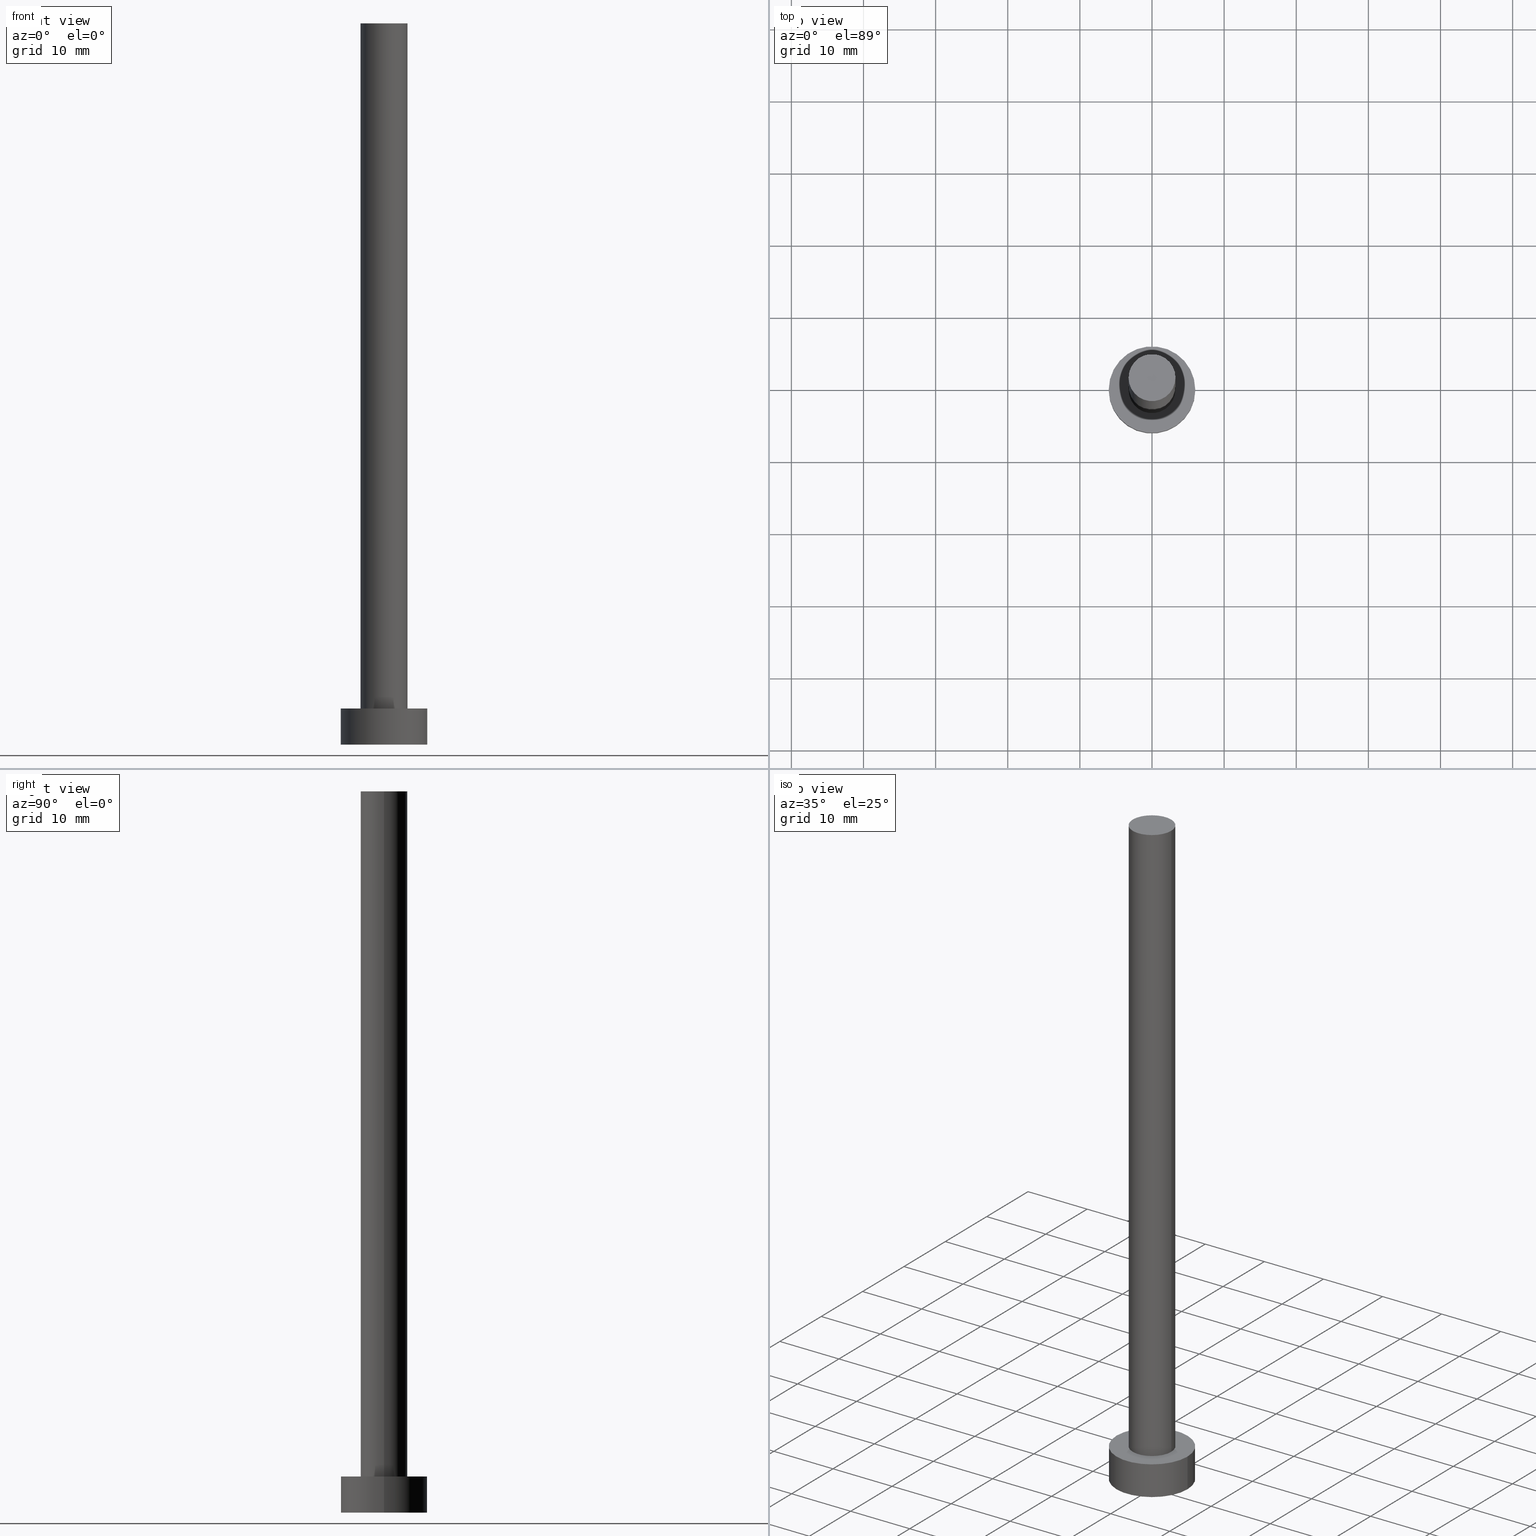
[diagram: canonical four-view strip — front | top / right | iso, engineering-drawing reading convention]
A machine part, canonical four-view strip (front | top / right | iso — engineering-drawing reading convention). The complete STEP part file that produces these views, byte-faithful:
ISO-10303-21;
HEADER;
FILE_DESCRIPTION (( 'STEP AP203' ),
    '1' );
FILE_NAME ('5fa0.STEP',
    '2023-02-12T11:31:53',
    ( '' ),
    ( '' ),
    'SwSTEP 2.0',
    'SolidWorks 2019',
    '' );
FILE_SCHEMA (( 'CONFIG_CONTROL_DESIGN' ));
ENDSEC;

DATA;
#1 = CC_DESIGN_PERSON_AND_ORGANIZATION_ASSIGNMENT ( #187, #90, ( #71 ) ) ;
#2 = DIRECTION ( 'NONE',  ( -0.000000000000000000, -0.000000000000000000, -1.000000000000000000 ) ) ;
#3 = ORIENTED_EDGE ( 'NONE', *, *, #118, .T. ) ;
#4 = CYLINDRICAL_SURFACE ( 'NONE', #16, 3.250000000000000444 ) ;
#5 = FACE_BOUND ( 'NONE', #245, .T. ) ;
#6 =( NAMED_UNIT ( * ) PLANE_ANGLE_UNIT ( ) SI_UNIT ( $, .RADIAN. ) );
#7 = AXIS2_PLACEMENT_3D ( 'NONE', #22, #81, #126 ) ;
#8 = ORIENTED_EDGE ( 'NONE', *, *, #51, .T. ) ;
#9 = APPLICATION_PROTOCOL_DEFINITION ( 'international standard', 'config_control_design', 1994, #255 ) ;
#10 = ORIENTED_EDGE ( 'NONE', *, *, #30, .F. ) ;
#11 = CIRCLE ( 'NONE', #36, 6.000000000000000888 ) ;
#12 = DIRECTION ( 'NONE',  ( 1.000000000000000000, 0.000000000000000000, 0.000000000000000000 ) ) ;
#13 = APPROVAL_STATUS ( 'not_yet_approved' ) ;
#14 = PRODUCT_DEFINITION_SHAPE ( 'NONE', 'NONE',  #205 ) ;
#15 = VERTEX_POINT ( 'NONE', #46 ) ;
#16 = AXIS2_PLACEMENT_3D ( 'NONE', #244, #61, #34 ) ;
#17 = PERSON_AND_ORGANIZATION ( #42, #214 ) ;
#18 = AXIS2_PLACEMENT_3D ( 'NONE', #246, #207, #208 ) ;
#19 = CARTESIAN_POINT ( 'NONE',  ( 6.000000000000000888, 7.347880794884120722E-16, 5.000000000000000000 ) ) ;
#20 = DIRECTION ( 'NONE',  ( 1.000000000000000000, 0.000000000000000000, 0.000000000000000000 ) ) ;
#21 = ADVANCED_FACE ( 'NONE', ( #140 ), #137, .T. ) ;
#22 = CARTESIAN_POINT ( 'NONE',  ( 0.000000000000000000, 0.000000000000000000, 5.000000000000000000 ) ) ;
#23 = ORIENTED_EDGE ( 'NONE', *, *, #212, .T. ) ;
#24 =( LENGTH_UNIT ( ) NAMED_UNIT ( * ) SI_UNIT ( .MILLI., .METRE. ) );
#25 = VERTEX_POINT ( 'NONE', #252 ) ;
#26 = CARTESIAN_POINT ( 'NONE',  ( 3.250000000000000444, 3.980102097228898231E-16, 5.000000000000000000 ) ) ;
#27 = ORIENTED_EDGE ( 'NONE', *, *, #178, .F. ) ;
#28 = CC_DESIGN_DATE_AND_TIME_ASSIGNMENT ( #236, #49, ( #205 ) ) ;
#29 = APPROVAL_STATUS ( 'not_yet_approved' ) ;
#30 = EDGE_CURVE ( 'NONE', #154, #211, #50, .T. ) ;
#31 = COORDINATED_UNIVERSAL_TIME_OFFSET ( 1, 0, .AHEAD. ) ;
#32 = PERSON_AND_ORGANIZATION_ROLE ( 'design_supplier' ) ;
#33 = CC_DESIGN_APPROVAL ( #247, ( #110 ) ) ;
#34 = DIRECTION ( 'NONE',  ( -1.000000000000000000, 0.000000000000000000, 0.000000000000000000 ) ) ;
#35 = FACE_OUTER_BOUND ( 'NONE', #251, .T. ) ;
#36 = AXIS2_PLACEMENT_3D ( 'NONE', #240, #195, #197 ) ;
#37 = DIRECTION ( 'NONE',  ( 0.000000000000000000, 0.000000000000000000, 1.000000000000000000 ) ) ;
#38 = DIRECTION ( 'NONE',  ( -0.000000000000000000, -0.000000000000000000, -1.000000000000000000 ) ) ;
#39 = CARTESIAN_POINT ( 'NONE',  ( -6.000000000000000888, 0.000000000000000000, 5.000000000000000000 ) ) ;
#40 = APPLICATION_PROTOCOL_DEFINITION ( 'international standard', 'config_control_design', 1994, #146 ) ;
#41 = DIRECTION ( 'NONE',  ( 1.000000000000000000, 0.000000000000000000, -0.000000000000000000 ) ) ;
#42 = PERSON ( 'NEUR�EN�', 'NEUR�EN�', 'NEUR�EN�', ('NEUR�EN�'), ('NEUR�EN�'), ('NEUR�EN�') ) ;
#43 = AXIS2_PLACEMENT_3D ( 'NONE', #239, #2, #206 ) ;
#44 = EDGE_LOOP ( 'NONE', ( #209, #225, #168, #170 ) ) ;
#45 = ORIENTED_EDGE ( 'NONE', *, *, #143, .T. ) ;
#46 = CARTESIAN_POINT ( 'NONE',  ( -3.250000000000000444, 0.000000000000000000, 100.0000000000000000 ) ) ;
#47 = CARTESIAN_POINT ( 'NONE',  ( -3.250000000000000444, 0.000000000000000000, 5.000000000000000000 ) ) ;
#48 = LOCAL_TIME ( 12, 31, 53.00000000000000000, #190 ) ;
#49 = DATE_TIME_ROLE ( 'creation_date' ) ;
#50 = CIRCLE ( 'NONE', #196, 6.000000000000000888 ) ;
#51 = EDGE_CURVE ( 'NONE', #248, #127, #100, .T. ) ;
#52 = CIRCLE ( 'NONE', #229, 3.250000000000000444 ) ;
#53 = LOCAL_TIME ( 12, 31, 53.00000000000000000, #101 ) ;
#54 = CARTESIAN_POINT ( 'NONE',  ( -3.250000000000000444, 0.000000000000000000, 100.0000000000000000 ) ) ;
#55 = DIRECTION ( 'NONE',  ( 1.000000000000000000, 0.000000000000000000, 0.000000000000000000 ) ) ;
#56 = VECTOR ( 'NONE', #130, 1000.000000000000000 ) ;
#57 = SECURITY_CLASSIFICATION_LEVEL ( 'unclassified' ) ;
#58 = DIRECTION ( 'NONE',  ( -1.000000000000000000, 0.000000000000000000, 0.000000000000000000 ) ) ;
#59 = PLANE ( 'NONE',  #158 ) ;
#60 = APPROVAL_ROLE ( '' ) ;
#61 = DIRECTION ( 'NONE',  ( -0.000000000000000000, -0.000000000000000000, -1.000000000000000000 ) ) ;
#62 = DIRECTION ( 'NONE',  ( 1.000000000000000000, 0.000000000000000000, 0.000000000000000000 ) ) ;
#63 = ORIENTED_EDGE ( 'NONE', *, *, #220, .F. ) ;
#64 = ADVANCED_FACE ( 'NONE', ( #161 ), #59, .F. ) ;
#65 = AXIS2_PLACEMENT_3D ( 'NONE', #201, #102, #179 ) ;
#66 =( GEOMETRIC_REPRESENTATION_CONTEXT ( 3 ) GLOBAL_UNCERTAINTY_ASSIGNED_CONTEXT ( ( #89 ) ) GLOBAL_UNIT_ASSIGNED_CONTEXT ( ( #24, #6, #111 ) ) REPRESENTATION_CONTEXT ( 'NONE', 'WORKASPACE' ) );
#67 = FACE_OUTER_BOUND ( 'NONE', #145, .T. ) ;
#68 = CARTESIAN_POINT ( 'NONE',  ( 6.000000000000000888, 7.347880794884120722E-16, 5.000000000000000000 ) ) ;
#69 = DATE_AND_TIME ( #97, #198 ) ;
#70 = ORIENTED_EDGE ( 'NONE', *, *, #128, .F. ) ;
#71 = PRODUCT ( '5fa0', '5fa0', '', ( #228 ) ) ;
#72 = APPROVAL_ROLE ( '' ) ;
#73 = EDGE_CURVE ( 'NONE', #15, #25, #242, .T. ) ;
#74 = AXIS2_PLACEMENT_3D ( 'NONE', #176, #215, #174 ) ;
#75 = APPROVAL_DATE_TIME ( #117, #250 ) ;
#76 = DATE_AND_TIME ( #202, #48 ) ;
#77 = CC_DESIGN_PERSON_AND_ORGANIZATION_ASSIGNMENT ( #17, #32, ( #110 ) ) ;
#78 = COORDINATED_UNIVERSAL_TIME_OFFSET ( 1, 0, .AHEAD. ) ;
#79 = LOCAL_TIME ( 12, 31, 53.00000000000000000, #31 ) ;
#80 = CARTESIAN_POINT ( 'NONE',  ( 0.000000000000000000, 0.000000000000000000, 0.000000000000000000 ) ) ;
#81 = DIRECTION ( 'NONE',  ( 0.000000000000000000, 0.000000000000000000, 1.000000000000000000 ) ) ;
#82 = CC_DESIGN_PERSON_AND_ORGANIZATION_ASSIGNMENT ( #139, #213, ( #205 ) ) ;
#83 = LINE ( 'NONE', #105, #180 ) ;
#84 = CC_DESIGN_APPROVAL ( #159, ( #155 ) ) ;
#85 = DIRECTION ( 'NONE',  ( 0.000000000000000000, 0.000000000000000000, 1.000000000000000000 ) ) ;
#86 = ADVANCED_FACE ( 'NONE', ( #35 ), #124, .T. ) ;
#87 = EDGE_LOOP ( 'NONE', ( #191, #45, #23, #112 ) ) ;
#88 = LINE ( 'NONE', #108, #189 ) ;
#89 = UNCERTAINTY_MEASURE_WITH_UNIT (LENGTH_MEASURE( 1.000000000000000082E-05 ), #24, 'distance_accuracy_value', 'NONE');
#90 = PERSON_AND_ORGANIZATION_ROLE ( 'design_owner' ) ;
#91 = AXIS2_PLACEMENT_3D ( 'NONE', #184, #113, #12 ) ;
#92 = PERSON_AND_ORGANIZATION ( #42, #214 ) ;
#93 = VERTEX_POINT ( 'NONE', #26 ) ;
#94 = LOCAL_TIME ( 12, 31, 53.00000000000000000, #78 ) ;
#95 = ORIENTED_EDGE ( 'NONE', *, *, #73, .T. ) ;
#96 = PERSON_AND_ORGANIZATION ( #42, #214 ) ;
#97 = CALENDAR_DATE ( 2023, 12, 2 ) ;
#98 = EDGE_CURVE ( 'NONE', #25, #15, #171, .T. ) ;
#99 = COORDINATED_UNIVERSAL_TIME_OFFSET ( 1, 0, .AHEAD. ) ;
#100 = CIRCLE ( 'NONE', #138, 6.000000000000000888 ) ;
#101 = COORDINATED_UNIVERSAL_TIME_OFFSET ( 1, 0, .AHEAD. ) ;
#102 = DIRECTION ( 'NONE',  ( 0.000000000000000000, 0.000000000000000000, 1.000000000000000000 ) ) ;
#103 = AXIS2_PLACEMENT_3D ( 'NONE', #221, #226, #133 ) ;
#104 = ADVANCED_FACE ( 'NONE', ( #5, #67 ), #186, .T. ) ;
#105 = CARTESIAN_POINT ( 'NONE',  ( 3.250000000000000444, 3.980102097228898231E-16, 100.0000000000000000 ) ) ;
#106 = CARTESIAN_POINT ( 'NONE',  ( 0.000000000000000000, 0.000000000000000000, 100.0000000000000000 ) ) ;
#107 = CIRCLE ( 'NONE', #7, 3.250000000000000444 ) ;
#108 = CARTESIAN_POINT ( 'NONE',  ( -6.000000000000000888, 0.000000000000000000, 5.000000000000000000 ) ) ;
#109 = EDGE_LOOP ( 'NONE', ( #10, #224, #8, #182 ) ) ;
#110 = PRODUCT_DEFINITION_FORMATION_WITH_SPECIFIED_SOURCE ( 'LIBOVOLN�', '', #71, .NOT_KNOWN. ) ;
#111 =( NAMED_UNIT ( * ) SI_UNIT ( $, .STERADIAN. ) SOLID_ANGLE_UNIT ( ) );
#112 = ORIENTED_EDGE ( 'NONE', *, *, #216, .F. ) ;
#113 = DIRECTION ( 'NONE',  ( 0.000000000000000000, 0.000000000000000000, 1.000000000000000000 ) ) ;
#114 = ORIENTED_EDGE ( 'NONE', *, *, #98, .T. ) ;
#115 = DIRECTION ( 'NONE',  ( 0.000000000000000000, 0.000000000000000000, 1.000000000000000000 ) ) ;
#116 = APPROVAL_PERSON_ORGANIZATION ( #253, #159, #254 ) ;
#117 = DATE_AND_TIME ( #235, #94 ) ;
#118 = EDGE_CURVE ( 'NONE', #127, #248, #125, .T. ) ;
#119 = PERSON_AND_ORGANIZATION ( #42, #214 ) ;
#120 = AXIS2_PLACEMENT_3D ( 'NONE', #106, #200, #58 ) ;
#121 = CARTESIAN_POINT ( 'NONE',  ( 0.000000000000000000, 0.000000000000000000, 5.000000000000000000 ) ) ;
#122 = CALENDAR_DATE ( 2023, 12, 2 ) ;
#123 = CYLINDRICAL_SURFACE ( 'NONE', #43, 6.000000000000000888 ) ;
#124 = CYLINDRICAL_SURFACE ( 'NONE', #18, 6.000000000000000888 ) ;
#125 = CIRCLE ( 'NONE', #233, 6.000000000000000888 ) ;
#126 = DIRECTION ( 'NONE',  ( 1.000000000000000000, 0.000000000000000000, 0.000000000000000000 ) ) ;
#127 = VERTEX_POINT ( 'NONE', #148 ) ;
#128 = EDGE_CURVE ( 'NONE', #211, #154, #11, .T. ) ;
#129 = VECTOR ( 'NONE', #141, 1000.000000000000000 ) ;
#130 = DIRECTION ( 'NONE',  ( -0.000000000000000000, -0.000000000000000000, -1.000000000000000000 ) ) ;
#131 = CARTESIAN_POINT ( 'NONE',  ( 0.000000000000000000, 0.000000000000000000, 0.000000000000000000 ) ) ;
#132 = EDGE_LOOP ( 'NONE', ( #151, #173 ) ) ;
#133 = DIRECTION ( 'NONE',  ( 1.000000000000000000, 0.000000000000000000, 0.000000000000000000 ) ) ;
#134 = PERSON_AND_ORGANIZATION_ROLE ( 'classification_officer' ) ;
#135 = ORIENTED_EDGE ( 'NONE', *, *, #136, .T. ) ;
#136 = EDGE_CURVE ( 'NONE', #211, #127, #88, .T. ) ;
#137 = PLANE ( 'NONE',  #74 ) ;
#138 = AXIS2_PLACEMENT_3D ( 'NONE', #80, #37, #164 ) ;
#139 = PERSON_AND_ORGANIZATION ( #42, #214 ) ;
#140 = FACE_OUTER_BOUND ( 'NONE', #188, .T. ) ;
#141 = DIRECTION ( 'NONE',  ( -0.000000000000000000, -0.000000000000000000, -1.000000000000000000 ) ) ;
#142 = APPROVAL_PERSON_ORGANIZATION ( #157, #247, #60 ) ;
#143 = EDGE_CURVE ( 'NONE', #25, #93, #83, .T. ) ;
#144 = DIRECTION ( 'NONE',  ( 0.000000000000000000, 0.000000000000000000, 1.000000000000000000 ) ) ;
#145 = EDGE_LOOP ( 'NONE', ( #249, #150 ) ) ;
#146 = APPLICATION_CONTEXT ( 'configuration controlled 3d designs of mechanical parts and assemblies' ) ;
#147 = FACE_OUTER_BOUND ( 'NONE', #44, .T. ) ;
#148 = CARTESIAN_POINT ( 'NONE',  ( -6.000000000000000888, 0.000000000000000000, 0.000000000000000000 ) ) ;
#149 = CC_DESIGN_PERSON_AND_ORGANIZATION_ASSIGNMENT ( #92, #134, ( #155 ) ) ;
#150 = ORIENTED_EDGE ( 'NONE', *, *, #30, .T. ) ;
#151 = ORIENTED_EDGE ( 'NONE', *, *, #118, .F. ) ;
#152 = DIRECTION ( 'NONE',  ( 0.000000000000000000, 0.000000000000000000, 1.000000000000000000 ) ) ;
#153 = CARTESIAN_POINT ( 'NONE',  ( 6.000000000000000888, 7.347880794884120722E-16, 0.000000000000000000 ) ) ;
#154 = VERTEX_POINT ( 'NONE', #19 ) ;
#155 = SECURITY_CLASSIFICATION ( '', '', #57 ) ;
#156 = ADVANCED_BREP_SHAPE_REPRESENTATION ( '5fa0', ( #232, #103 ), #66 ) ;
#157 = PERSON_AND_ORGANIZATION ( #42, #214 ) ;
#158 = AXIS2_PLACEMENT_3D ( 'NONE', #160, #243, #166 ) ;
#159 = APPROVAL ( #13, 'NEUR�EN�' ) ;
#160 = CARTESIAN_POINT ( 'NONE',  ( 0.000000000000000000, 0.000000000000000000, 0.000000000000000000 ) ) ;
#161 = FACE_OUTER_BOUND ( 'NONE', #132, .T. ) ;
#162 = ADVANCED_FACE ( 'NONE', ( #147 ), #241, .T. ) ;
#163 = DATE_AND_TIME ( #122, #79 ) ;
#164 = DIRECTION ( 'NONE',  ( 1.000000000000000000, 0.000000000000000000, 0.000000000000000000 ) ) ;
#165 = DIRECTION ( 'NONE',  ( -0.000000000000000000, -0.000000000000000000, -1.000000000000000000 ) ) ;
#166 = DIRECTION ( 'NONE',  ( 1.000000000000000000, 0.000000000000000000, -0.000000000000000000 ) ) ;
#167 = CC_DESIGN_APPROVAL ( #250, ( #205 ) ) ;
#168 = ORIENTED_EDGE ( 'NONE', *, *, #216, .T. ) ;
#169 = APPROVAL_STATUS ( 'not_yet_approved' ) ;
#170 = ORIENTED_EDGE ( 'NONE', *, *, #178, .T. ) ;
#171 = CIRCLE ( 'NONE', #91, 3.250000000000000444 ) ;
#172 = SHAPE_DEFINITION_REPRESENTATION ( #14, #156 ) ;
#173 = ORIENTED_EDGE ( 'NONE', *, *, #51, .F. ) ;
#174 = DIRECTION ( 'NONE',  ( 1.000000000000000000, 0.000000000000000000, -0.000000000000000000 ) ) ;
#175 = DATE_TIME_ROLE ( 'classification_date' ) ;
#176 = CARTESIAN_POINT ( 'NONE',  ( 0.000000000000000000, 0.000000000000000000, 100.0000000000000000 ) ) ;
#177 = CALENDAR_DATE ( 2023, 12, 2 ) ;
#178 = EDGE_CURVE ( 'NONE', #223, #93, #52, .T. ) ;
#179 = DIRECTION ( 'NONE',  ( 1.000000000000000000, 0.000000000000000000, 0.000000000000000000 ) ) ;
#180 = VECTOR ( 'NONE', #165, 1000.000000000000000 ) ;
#181 = DESIGN_CONTEXT ( 'detailed design', #255, 'design' ) ;
#182 = ORIENTED_EDGE ( 'NONE', *, *, #136, .F. ) ;
#183 = FACE_OUTER_BOUND ( 'NONE', #87, .T. ) ;
#184 = CARTESIAN_POINT ( 'NONE',  ( 0.000000000000000000, 0.000000000000000000, 100.0000000000000000 ) ) ;
#185 = LINE ( 'NONE', #68, #56 ) ;
#186 = PLANE ( 'NONE',  #234 ) ;
#187 = PERSON_AND_ORGANIZATION ( #42, #214 ) ;
#188 = EDGE_LOOP ( 'NONE', ( #95, #114 ) ) ;
#189 = VECTOR ( 'NONE', #38, 1000.000000000000000 ) ;
#190 = COORDINATED_UNIVERSAL_TIME_OFFSET ( 1, 0, .AHEAD. ) ;
#191 = ORIENTED_EDGE ( 'NONE', *, *, #98, .F. ) ;
#192 = ADVANCED_FACE ( 'NONE', ( #183 ), #4, .T. ) ;
#193 = PERSON_AND_ORGANIZATION_ROLE ( 'creator' ) ;
#194 = PRODUCT_RELATED_PRODUCT_CATEGORY ( 'detail', '', ( #71 ) ) ;
#195 = DIRECTION ( 'NONE',  ( 0.000000000000000000, 0.000000000000000000, 1.000000000000000000 ) ) ;
#196 = AXIS2_PLACEMENT_3D ( 'NONE', #121, #85, #55 ) ;
#197 = DIRECTION ( 'NONE',  ( 1.000000000000000000, 0.000000000000000000, 0.000000000000000000 ) ) ;
#198 = LOCAL_TIME ( 12, 31, 53.00000000000000000, #99 ) ;
#199 = CC_DESIGN_DATE_AND_TIME_ASSIGNMENT ( #69, #175, ( #155 ) ) ;
#200 = DIRECTION ( 'NONE',  ( -0.000000000000000000, -0.000000000000000000, -1.000000000000000000 ) ) ;
#201 = CARTESIAN_POINT ( 'NONE',  ( 0.000000000000000000, 0.000000000000000000, 100.0000000000000000 ) ) ;
#202 = CALENDAR_DATE ( 2023, 12, 2 ) ;
#203 = CARTESIAN_POINT ( 'NONE',  ( 0.000000000000000000, 0.000000000000000000, 5.000000000000000000 ) ) ;
#204 = CARTESIAN_POINT ( 'NONE',  ( 0.000000000000000000, 0.000000000000000000, 5.000000000000000000 ) ) ;
#205 = PRODUCT_DEFINITION ( 'NEZN�M�', '', #110, #181 ) ;
#206 = DIRECTION ( 'NONE',  ( -1.000000000000000000, 0.000000000000000000, 0.000000000000000000 ) ) ;
#207 = DIRECTION ( 'NONE',  ( -0.000000000000000000, -0.000000000000000000, -1.000000000000000000 ) ) ;
#208 = DIRECTION ( 'NONE',  ( -1.000000000000000000, 0.000000000000000000, 0.000000000000000000 ) ) ;
#209 = ORIENTED_EDGE ( 'NONE', *, *, #143, .F. ) ;
#210 = CC_DESIGN_PERSON_AND_ORGANIZATION_ASSIGNMENT ( #119, #193, ( #110 ) ) ;
#211 = VERTEX_POINT ( 'NONE', #39 ) ;
#212 = EDGE_CURVE ( 'NONE', #93, #223, #107, .T. ) ;
#213 = PERSON_AND_ORGANIZATION_ROLE ( 'creator' ) ;
#214 = ORGANIZATION ( 'NEUR�EN�', 'NEUR�EN�', '' ) ;
#215 = DIRECTION ( 'NONE',  ( 0.000000000000000000, 0.000000000000000000, 1.000000000000000000 ) ) ;
#216 = EDGE_CURVE ( 'NONE', #15, #223, #237, .T. ) ;
#217 = APPROVAL_PERSON_ORGANIZATION ( #96, #250, #72 ) ;
#218 = FACE_OUTER_BOUND ( 'NONE', #109, .T. ) ;
#219 = ADVANCED_FACE ( 'NONE', ( #218 ), #123, .T. ) ;
#220 = EDGE_CURVE ( 'NONE', #154, #248, #185, .T. ) ;
#221 = CARTESIAN_POINT ( 'NONE',  ( 0.000000000000000000, 0.000000000000000000, 0.000000000000000000 ) ) ;
#222 = CLOSED_SHELL ( 'NONE', ( #192, #219, #86, #104, #64, #162, #21 ) ) ;
#223 = VERTEX_POINT ( 'NONE', #47 ) ;
#224 = ORIENTED_EDGE ( 'NONE', *, *, #220, .T. ) ;
#225 = ORIENTED_EDGE ( 'NONE', *, *, #73, .F. ) ;
#226 = DIRECTION ( 'NONE',  ( 0.000000000000000000, 0.000000000000000000, 1.000000000000000000 ) ) ;
#227 = ORIENTED_EDGE ( 'NONE', *, *, #212, .F. ) ;
#228 = MECHANICAL_CONTEXT ( 'NONE', #146, 'mechanical' ) ;
#229 = AXIS2_PLACEMENT_3D ( 'NONE', #203, #144, #20 ) ;
#230 = CC_DESIGN_SECURITY_CLASSIFICATION ( #155, ( #110 ) ) ;
#231 = APPROVAL_DATE_TIME ( #76, #159 ) ;
#232 = MANIFOLD_SOLID_BREP ( 'P�idat vysunut�m3', #222 ) ;
#233 = AXIS2_PLACEMENT_3D ( 'NONE', #131, #115, #62 ) ;
#234 = AXIS2_PLACEMENT_3D ( 'NONE', #204, #152, #41 ) ;
#235 = CALENDAR_DATE ( 2023, 12, 2 ) ;
#236 = DATE_AND_TIME ( #177, #53 ) ;
#237 = LINE ( 'NONE', #54, #129 ) ;
#238 = APPROVAL_DATE_TIME ( #163, #247 ) ;
#239 = CARTESIAN_POINT ( 'NONE',  ( 0.000000000000000000, 0.000000000000000000, 5.000000000000000000 ) ) ;
#240 = CARTESIAN_POINT ( 'NONE',  ( 0.000000000000000000, 0.000000000000000000, 5.000000000000000000 ) ) ;
#241 = CYLINDRICAL_SURFACE ( 'NONE', #120, 3.250000000000000444 ) ;
#242 = CIRCLE ( 'NONE', #65, 3.250000000000000444 ) ;
#243 = DIRECTION ( 'NONE',  ( 0.000000000000000000, 0.000000000000000000, 1.000000000000000000 ) ) ;
#244 = CARTESIAN_POINT ( 'NONE',  ( 0.000000000000000000, 0.000000000000000000, 100.0000000000000000 ) ) ;
#245 = EDGE_LOOP ( 'NONE', ( #27, #227 ) ) ;
#246 = CARTESIAN_POINT ( 'NONE',  ( 0.000000000000000000, 0.000000000000000000, 5.000000000000000000 ) ) ;
#247 = APPROVAL ( #29, 'NEUR�EN�' ) ;
#248 = VERTEX_POINT ( 'NONE', #153 ) ;
#249 = ORIENTED_EDGE ( 'NONE', *, *, #128, .T. ) ;
#250 = APPROVAL ( #169, 'NEUR�EN�' ) ;
#251 = EDGE_LOOP ( 'NONE', ( #63, #70, #135, #3 ) ) ;
#252 = CARTESIAN_POINT ( 'NONE',  ( 3.250000000000000444, 3.980102097228898231E-16, 100.0000000000000000 ) ) ;
#253 = PERSON_AND_ORGANIZATION ( #42, #214 ) ;
#254 = APPROVAL_ROLE ( '' ) ;
#255 = APPLICATION_CONTEXT ( 'configuration controlled 3d designs of mechanical parts and assemblies' ) ;
ENDSEC;
END-ISO-10303-21;
